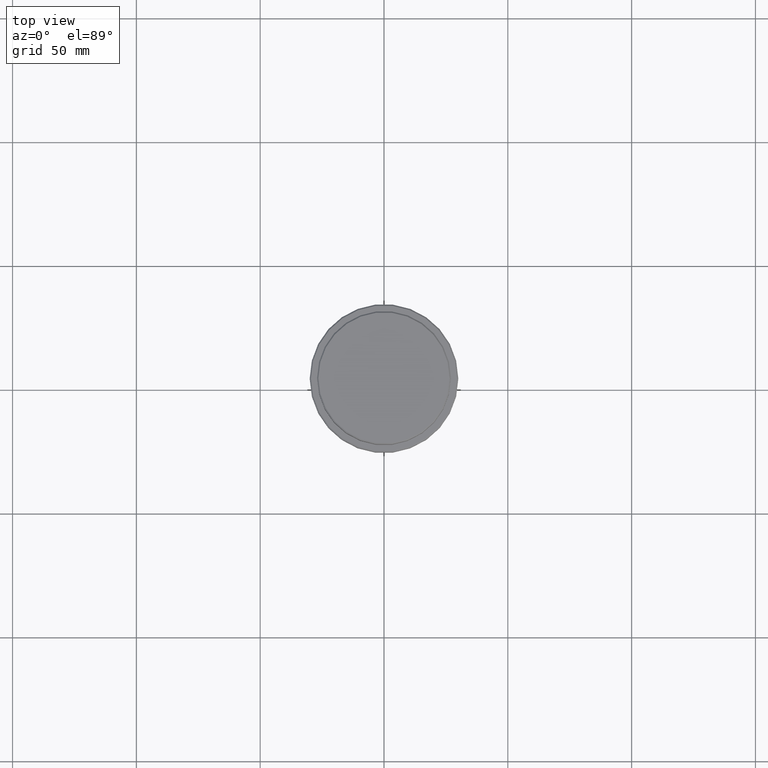
[diagram: clean part render]
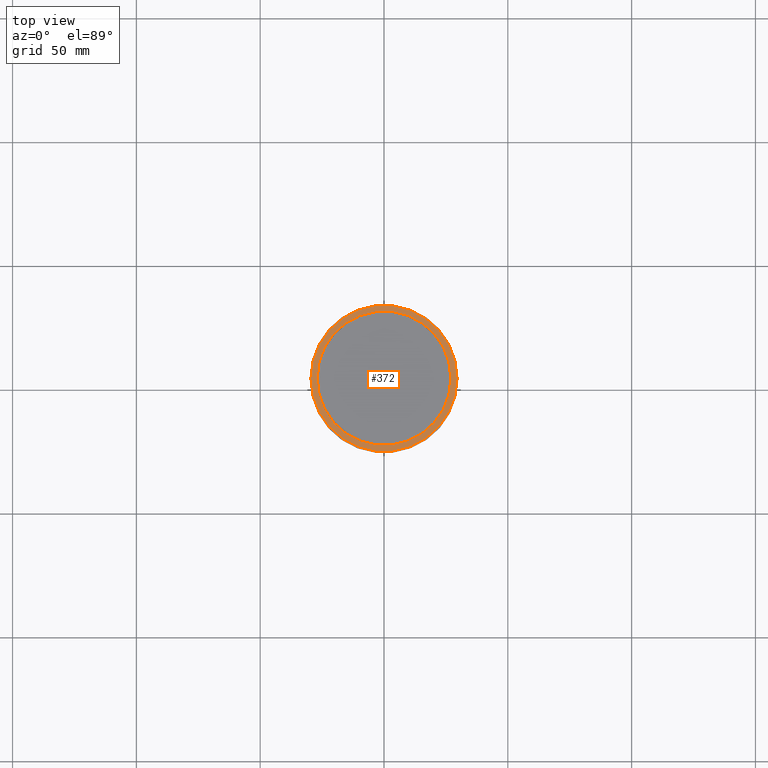
[diagram: same view with one face highlighted and labeled with its STEP entity id]
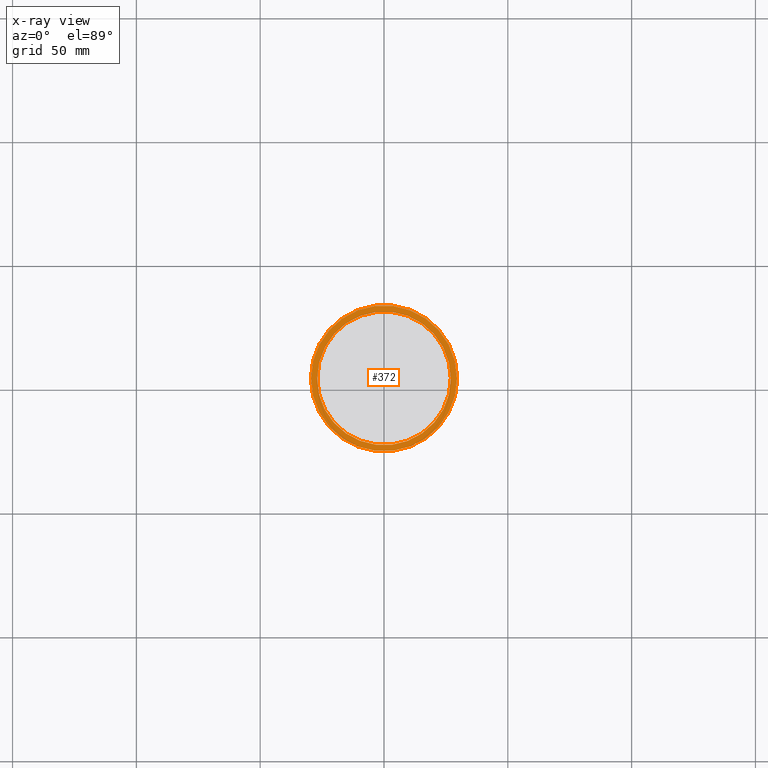
[diagram: x-ray of the same camera — body ghosted, the highlighted face saturated]
A machine part, top view. The second image highlights one B-rep face of the part: STEP entity #372.
The next image is the same camera in x-ray: the body ghosted, the highlighted face saturated — about 0% of this face is hidden behind the body in this view.
In plain terms, the highlighted planar face has unit normal (0, -0, 1).
Its self-contained STEP definition (entity closure, byte-faithful):
#9 = DIRECTION ( 'NONE',  ( 1.000000000000000000, 0.000000000000000000, 0.000000000000000000 ) ) ;
#26 = CARTESIAN_POINT ( 'NONE',  ( 26.99999999999999289, 0.000000000000000000, -12.00000000000000178 ) ) ;
#46 = VERTEX_POINT ( 'NONE', #447 ) ;
#80 = DIRECTION ( 'NONE',  ( 1.000000000000000000, 0.000000000000000000, 0.000000000000000000 ) ) ;
#182 = CARTESIAN_POINT ( 'NONE',  ( 29.50000000000000000, 3.643324227463375391E-15, -12.00000000000000178 ) ) ;
#262 = EDGE_CURVE ( 'NONE', #755, #46, #765, .T. ) ;
#331 = FACE_OUTER_BOUND ( 'NONE', #529, .T. ) ;
#348 = AXIS2_PLACEMENT_3D ( 'NONE', #489, #1057, #80 ) ;
#372 = ADVANCED_FACE ( 'NONE', ( #331, #423 ), #1285, .T. ) ;
#423 = FACE_BOUND ( 'NONE', #587, .T. ) ;
#425 = CARTESIAN_POINT ( 'NONE',  ( 0.000000000000000000, 0.000000000000000000, -12.00000000000000178 ) ) ;
#443 = DIRECTION ( 'NONE',  ( -0.000000000000000000, -0.000000000000000000, 1.000000000000000000 ) ) ;
#447 = CARTESIAN_POINT ( 'NONE',  ( -29.50000000000000000, 0.000000000000000000, -12.00000000000000178 ) ) ;
#455 = CIRCLE ( 'NONE', #477, 29.50000000000000000 ) ;
#477 = AXIS2_PLACEMENT_3D ( 'NONE', #425, #443, #955 ) ;
#489 = CARTESIAN_POINT ( 'NONE',  ( 0.000000000000000000, 0.000000000000000000, -12.00000000000000178 ) ) ;
#529 = EDGE_LOOP ( 'NONE', ( #809, #1214 ) ) ;
#587 = EDGE_LOOP ( 'NONE', ( #1335, #902 ) ) ;
#646 = AXIS2_PLACEMENT_3D ( 'NONE', #1017, #680, #9 ) ;
#680 = DIRECTION ( 'NONE',  ( 0.000000000000000000, -0.000000000000000000, 1.000000000000000000 ) ) ;
#734 = DIRECTION ( 'NONE',  ( 0.000000000000000000, 0.000000000000000000, -1.000000000000000000 ) ) ;
#755 = VERTEX_POINT ( 'NONE', #182 ) ;
#765 = CIRCLE ( 'NONE', #348, 29.50000000000000000 ) ;
#801 = VERTEX_POINT ( 'NONE', #1138 ) ;
#808 = CIRCLE ( 'NONE', #945, 26.99999999999999289 ) ;
#809 = ORIENTED_EDGE ( 'NONE', *, *, #1139, .T. ) ;
#902 = ORIENTED_EDGE ( 'NONE', *, *, #1161, .T. ) ;
#945 = AXIS2_PLACEMENT_3D ( 'NONE', #1405, #1062, #1387 ) ;
#955 = DIRECTION ( 'NONE',  ( 1.000000000000000000, 0.000000000000000000, 0.000000000000000000 ) ) ;
#1017 = CARTESIAN_POINT ( 'NONE',  ( 0.000000000000000000, 26.49999999999999645, -12.00000000000000178 ) ) ;
#1057 = DIRECTION ( 'NONE',  ( -0.000000000000000000, -0.000000000000000000, 1.000000000000000000 ) ) ;
#1062 = DIRECTION ( 'NONE',  ( 0.000000000000000000, 0.000000000000000000, -1.000000000000000000 ) ) ;
#1123 = EDGE_CURVE ( 'NONE', #1410, #801, #808, .T. ) ;
#1127 = CIRCLE ( 'NONE', #1179, 26.99999999999999289 ) ;
#1138 = CARTESIAN_POINT ( 'NONE',  ( -26.99999999999999289, 3.306546357697852944E-15, -12.00000000000000178 ) ) ;
#1139 = EDGE_CURVE ( 'NONE', #46, #755, #455, .T. ) ;
#1161 = EDGE_CURVE ( 'NONE', #801, #1410, #1127, .T. ) ;
#1179 = AXIS2_PLACEMENT_3D ( 'NONE', #1394, #734, #1273 ) ;
#1214 = ORIENTED_EDGE ( 'NONE', *, *, #262, .T. ) ;
#1273 = DIRECTION ( 'NONE',  ( 1.000000000000000000, 0.000000000000000000, 0.000000000000000000 ) ) ;
#1285 = PLANE ( 'NONE',  #646 ) ;
#1335 = ORIENTED_EDGE ( 'NONE', *, *, #1123, .T. ) ;
#1387 = DIRECTION ( 'NONE',  ( 1.000000000000000000, 0.000000000000000000, 0.000000000000000000 ) ) ;
#1394 = CARTESIAN_POINT ( 'NONE',  ( 0.000000000000000000, 0.000000000000000000, -12.00000000000000178 ) ) ;
#1405 = CARTESIAN_POINT ( 'NONE',  ( 0.000000000000000000, 0.000000000000000000, -12.00000000000000178 ) ) ;
#1410 = VERTEX_POINT ( 'NONE', #26 ) ;